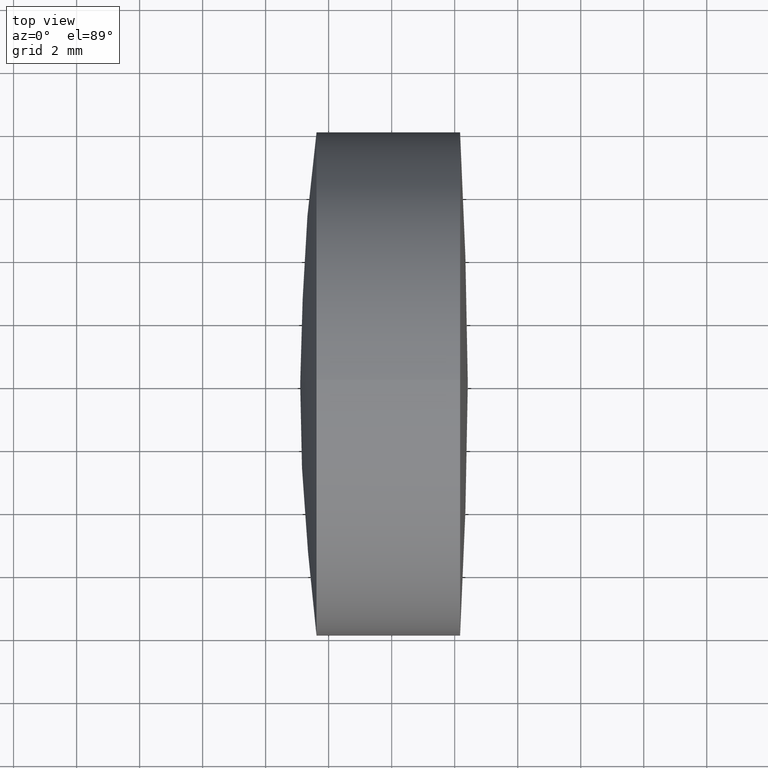
[diagram: clean part render]
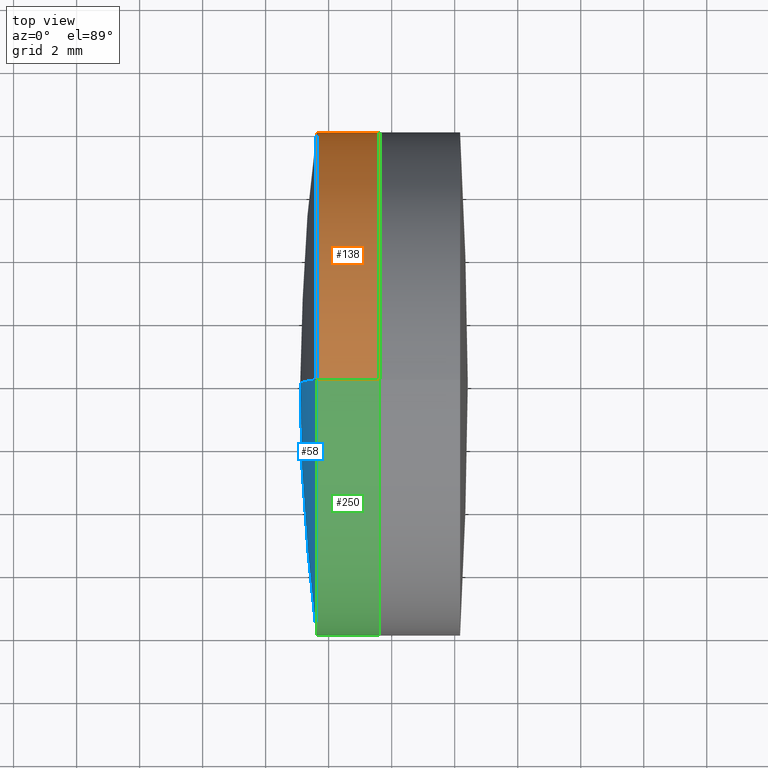
[diagram: same view with three faces highlighted in distinct colors, each labeled with its STEP entity id]
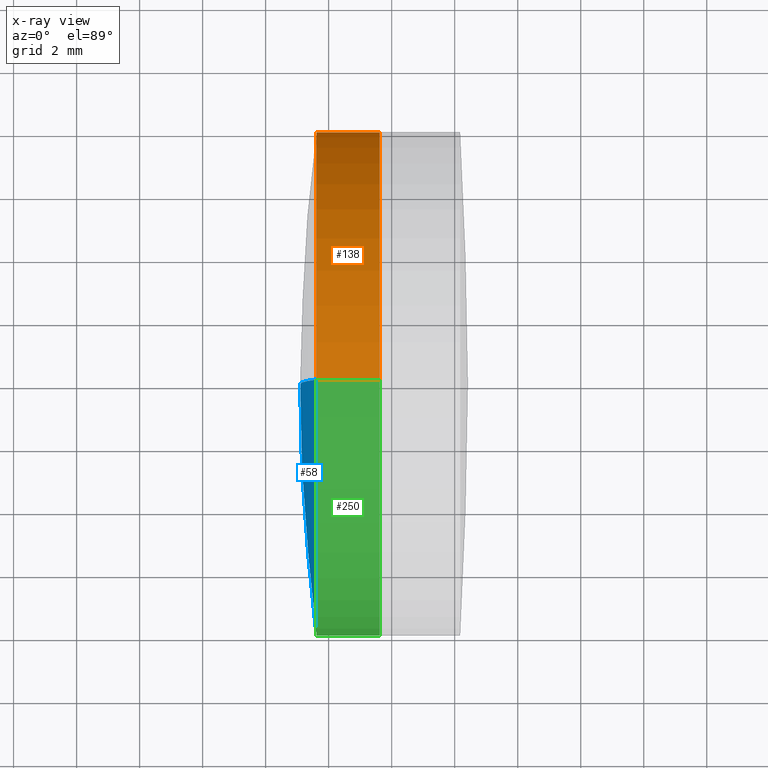
[diagram: x-ray of the same camera — body ghosted, the three highlighted faces saturated]
A machine part, top view with three faces highlighted in distinct colors.
The next image is the same camera in x-ray (body ghosted, the three faces saturated) — at least one of them is partly hidden behind the body in this view.
Their STEP definitions:

[orange] entity #138 — the highlighted cylindrical surface (partial cylindrical patch) has radius 8 mm, axis along (-1, -0, -0).
#1 = CYLINDRICAL_SURFACE ( 'NONE', #87, 8.000000000000000000 ) ;
#3 = ORIENTED_EDGE ( 'NONE', *, *, #163, .T. ) ;
#23 = ORIENTED_EDGE ( 'NONE', *, *, #144, .T. ) ;
#37 = DIRECTION ( 'NONE',  ( 0.0000000000000000000, 0.0000000000000000000, 1.000000000000000000 ) ) ;
#42 = AXIS2_PLACEMENT_3D ( 'NONE', #198, #279, #37 ) ;
#53 = DIRECTION ( 'NONE',  ( 0.0000000000000000000, 0.0000000000000000000, 1.000000000000000000 ) ) ;
#59 = LINE ( 'NONE', #98, #291 ) ;
#75 = CARTESIAN_POINT ( 'NONE',  ( 35.61649277584162100, 0.0000000000000000000, 8.000000000000000000 ) ) ;
#87 = AXIS2_PLACEMENT_3D ( 'NONE', #239, #243, #100 ) ;
#90 = CIRCLE ( 'NONE', #42, 8.000000000000000000 ) ;
#93 = CARTESIAN_POINT ( 'NONE',  ( 33.61495409524220400, -9.797174393178819700E-016, 7.999999999999992900 ) ) ;
#98 = CARTESIAN_POINT ( 'NONE',  ( -9.702612178336682500, 9.797174393178825700E-016, -8.000000000000000000 ) ) ;
#100 = DIRECTION ( 'NONE',  ( 0.0000000000000000000, 0.0000000000000000000, 1.000000000000000000 ) ) ;
#102 = VERTEX_POINT ( 'NONE', #93 ) ;
#126 = AXIS2_PLACEMENT_3D ( 'NONE', #313, #255, #53 ) ;
#133 = LINE ( 'NONE', #253, #189 ) ;
#138 = ADVANCED_FACE ( 'NONE', ( #238 ), #1, .T. ) ;
#139 = EDGE_CURVE ( 'NONE', #102, #223, #90, .T. ) ;
#144 = EDGE_CURVE ( 'NONE', #156, #223, #59, .T. ) ;
#147 = CIRCLE ( 'NONE', #126, 8.000000000000000000 ) ;
#156 = VERTEX_POINT ( 'NONE', #346 ) ;
#163 = EDGE_CURVE ( 'NONE', #332, #156, #147, .T. ) ;
#183 = ORIENTED_EDGE ( 'NONE', *, *, #338, .F. ) ;
#189 = VECTOR ( 'NONE', #273, 1000.000000000000000 ) ;
#198 = CARTESIAN_POINT ( 'NONE',  ( 33.61495409524220400, 0.0000000000000000000, 0.0000000000000000000 ) ) ;
#204 = EDGE_LOOP ( 'NONE', ( #3, #23, #320, #183 ) ) ;
#223 = VERTEX_POINT ( 'NONE', #294 ) ;
#236 = DIRECTION ( 'NONE',  ( -1.000000000000000000, -0.0000000000000000000, -0.0000000000000000000 ) ) ;
#238 = FACE_OUTER_BOUND ( 'NONE', #204, .T. ) ;
#239 = CARTESIAN_POINT ( 'NONE',  ( -9.702612178336682500, 0.0000000000000000000, 0.0000000000000000000 ) ) ;
#243 = DIRECTION ( 'NONE',  ( -1.000000000000000000, -0.0000000000000000000, -0.0000000000000000000 ) ) ;
#253 = CARTESIAN_POINT ( 'NONE',  ( -9.702612178336682500, 0.0000000000000000000, 8.000000000000000000 ) ) ;
#255 = DIRECTION ( 'NONE',  ( -1.000000000000000000, -0.0000000000000000000, -0.0000000000000000000 ) ) ;
#273 = DIRECTION ( 'NONE',  ( -1.000000000000000000, -0.0000000000000000000, -0.0000000000000000000 ) ) ;
#279 = DIRECTION ( 'NONE',  ( -1.000000000000000000, -0.0000000000000000000, -0.0000000000000000000 ) ) ;
#291 = VECTOR ( 'NONE', #236, 1000.000000000000000 ) ;
#294 = CARTESIAN_POINT ( 'NONE',  ( 33.61495409524220400, 0.0000000000000000000, -7.999999999999992900 ) ) ;
#313 = CARTESIAN_POINT ( 'NONE',  ( 35.61649277584162100, 0.0000000000000000000, 0.0000000000000000000 ) ) ;
#320 = ORIENTED_EDGE ( 'NONE', *, *, #139, .F. ) ;
#332 = VERTEX_POINT ( 'NONE', #75 ) ;
#338 = EDGE_CURVE ( 'NONE', #332, #102, #133, .T. ) ;
#346 = CARTESIAN_POINT ( 'NONE',  ( 35.61649277584162100, 9.797174393178825700E-016, -8.000000000000000000 ) ) ;

[blue] entity #58 — the highlighted spherical surface has radius 61.954 mm.
#7 = EDGE_LOOP ( 'NONE', ( #101, #62, #22 ) ) ;
#22 = ORIENTED_EDGE ( 'NONE', *, *, #232, .F. ) ;
#26 = DIRECTION ( 'NONE',  ( 0.0000000000000000000, 1.000000000000000000, -0.0000000000000000000 ) ) ;
#36 = VERTEX_POINT ( 'NONE', #119 ) ;
#40 = EDGE_CURVE ( 'NONE', #102, #36, #345, .T. ) ;
#58 = ADVANCED_FACE ( 'NONE', ( #254 ), #117, .T. ) ;
#62 = ORIENTED_EDGE ( 'NONE', *, *, #40, .T. ) ;
#83 = AXIS2_PLACEMENT_3D ( 'NONE', #209, #185, #142 ) ;
#93 = CARTESIAN_POINT ( 'NONE',  ( 33.61495409524220400, -9.797174393178819700E-016, 7.999999999999992900 ) ) ;
#96 = DIRECTION ( 'NONE',  ( 0.0000000000000000000, 1.224646799147353200E-016, -1.000000000000000000 ) ) ;
#101 = ORIENTED_EDGE ( 'NONE', *, *, #257, .T. ) ;
#102 = VERTEX_POINT ( 'NONE', #93 ) ;
#106 = DIRECTION ( 'NONE',  ( 0.0000000000000000000, 0.0000000000000000000, -1.000000000000000000 ) ) ;
#117 = SPHERICAL_SURFACE ( 'NONE', #169, 61.95399999999999400 ) ;
#119 = CARTESIAN_POINT ( 'NONE',  ( 33.09627061595364900, 0.0000000000000000000, -3.763213766698355200E-015 ) ) ;
#142 = DIRECTION ( 'NONE',  ( 0.0000000000000000000, 0.0000000000000000000, 1.000000000000000000 ) ) ;
#143 = CIRCLE ( 'NONE', #259, 61.95399999999999400 ) ;
#158 = DIRECTION ( 'NONE',  ( 0.0000000000000000000, 0.0000000000000000000, 1.000000000000000000 ) ) ;
#161 = DIRECTION ( 'NONE',  ( -0.0000000000000000000, -1.000000000000000000, -0.0000000000000000000 ) ) ;
#169 = AXIS2_PLACEMENT_3D ( 'NONE', #234, #161, #106 ) ;
#185 = DIRECTION ( 'NONE',  ( -1.000000000000000000, -0.0000000000000000000, -0.0000000000000000000 ) ) ;
#209 = CARTESIAN_POINT ( 'NONE',  ( 33.61495409524220400, 0.0000000000000000000, 0.0000000000000000000 ) ) ;
#210 = CARTESIAN_POINT ( 'NONE',  ( 95.05027061595363600, 0.0000000000000000000, 3.037462302040094600E-017 ) ) ;
#213 = CARTESIAN_POINT ( 'NONE',  ( 95.05027061595363600, 0.0000000000000000000, 3.037462302040094600E-017 ) ) ;
#218 = AXIS2_PLACEMENT_3D ( 'NONE', #213, #298, #96 ) ;
#223 = VERTEX_POINT ( 'NONE', #294 ) ;
#232 = EDGE_CURVE ( 'NONE', #223, #36, #143, .T. ) ;
#234 = CARTESIAN_POINT ( 'NONE',  ( 95.05027061595363600, 0.0000000000000000000, 3.037462302040094600E-017 ) ) ;
#254 = FACE_OUTER_BOUND ( 'NONE', #7, .T. ) ;
#257 = EDGE_CURVE ( 'NONE', #223, #102, #267, .T. ) ;
#259 = AXIS2_PLACEMENT_3D ( 'NONE', #210, #26, #158 ) ;
#267 = CIRCLE ( 'NONE', #83, 8.000000000000000000 ) ;
#294 = CARTESIAN_POINT ( 'NONE',  ( 33.61495409524220400, 0.0000000000000000000, -7.999999999999992900 ) ) ;
#298 = DIRECTION ( 'NONE',  ( 0.0000000000000000000, -1.000000000000000000, -1.224646799147353200E-016 ) ) ;
#345 = CIRCLE ( 'NONE', #218, 61.95399999999999400 ) ;

[green] entity #250 — the highlighted cylindrical surface (partial cylindrical patch) has radius 8 mm, axis along (-1, -0, -0).
#15 = ORIENTED_EDGE ( 'NONE', *, *, #338, .T. ) ;
#29 = EDGE_CURVE ( 'NONE', #156, #332, #258, .T. ) ;
#46 = DIRECTION ( 'NONE',  ( 0.0000000000000000000, 0.0000000000000000000, 1.000000000000000000 ) ) ;
#51 = EDGE_LOOP ( 'NONE', ( #184, #277, #15, #150 ) ) ;
#59 = LINE ( 'NONE', #98, #291 ) ;
#72 = CARTESIAN_POINT ( 'NONE',  ( -9.702612178336682500, 0.0000000000000000000, 0.0000000000000000000 ) ) ;
#75 = CARTESIAN_POINT ( 'NONE',  ( 35.61649277584162100, 0.0000000000000000000, 8.000000000000000000 ) ) ;
#83 = AXIS2_PLACEMENT_3D ( 'NONE', #209, #185, #142 ) ;
#93 = CARTESIAN_POINT ( 'NONE',  ( 33.61495409524220400, -9.797174393178819700E-016, 7.999999999999992900 ) ) ;
#98 = CARTESIAN_POINT ( 'NONE',  ( -9.702612178336682500, 9.797174393178825700E-016, -8.000000000000000000 ) ) ;
#102 = VERTEX_POINT ( 'NONE', #93 ) ;
#122 = CARTESIAN_POINT ( 'NONE',  ( 35.61649277584162100, 0.0000000000000000000, 0.0000000000000000000 ) ) ;
#133 = LINE ( 'NONE', #253, #189 ) ;
#142 = DIRECTION ( 'NONE',  ( 0.0000000000000000000, 0.0000000000000000000, 1.000000000000000000 ) ) ;
#144 = EDGE_CURVE ( 'NONE', #156, #223, #59, .T. ) ;
#150 = ORIENTED_EDGE ( 'NONE', *, *, #257, .F. ) ;
#156 = VERTEX_POINT ( 'NONE', #346 ) ;
#184 = ORIENTED_EDGE ( 'NONE', *, *, #144, .F. ) ;
#185 = DIRECTION ( 'NONE',  ( -1.000000000000000000, -0.0000000000000000000, -0.0000000000000000000 ) ) ;
#189 = VECTOR ( 'NONE', #273, 1000.000000000000000 ) ;
#190 = CYLINDRICAL_SURFACE ( 'NONE', #192, 8.000000000000000000 ) ;
#192 = AXIS2_PLACEMENT_3D ( 'NONE', #72, #274, #305 ) ;
#209 = CARTESIAN_POINT ( 'NONE',  ( 33.61495409524220400, 0.0000000000000000000, 0.0000000000000000000 ) ) ;
#223 = VERTEX_POINT ( 'NONE', #294 ) ;
#236 = DIRECTION ( 'NONE',  ( -1.000000000000000000, -0.0000000000000000000, -0.0000000000000000000 ) ) ;
#250 = ADVANCED_FACE ( 'NONE', ( #319 ), #190, .T. ) ;
#253 = CARTESIAN_POINT ( 'NONE',  ( -9.702612178336682500, 0.0000000000000000000, 8.000000000000000000 ) ) ;
#257 = EDGE_CURVE ( 'NONE', #223, #102, #267, .T. ) ;
#258 = CIRCLE ( 'NONE', #300, 8.000000000000000000 ) ;
#267 = CIRCLE ( 'NONE', #83, 8.000000000000000000 ) ;
#273 = DIRECTION ( 'NONE',  ( -1.000000000000000000, -0.0000000000000000000, -0.0000000000000000000 ) ) ;
#274 = DIRECTION ( 'NONE',  ( -1.000000000000000000, -0.0000000000000000000, -0.0000000000000000000 ) ) ;
#277 = ORIENTED_EDGE ( 'NONE', *, *, #29, .T. ) ;
#291 = VECTOR ( 'NONE', #236, 1000.000000000000000 ) ;
#294 = CARTESIAN_POINT ( 'NONE',  ( 33.61495409524220400, 0.0000000000000000000, -7.999999999999992900 ) ) ;
#297 = DIRECTION ( 'NONE',  ( -1.000000000000000000, -0.0000000000000000000, -0.0000000000000000000 ) ) ;
#300 = AXIS2_PLACEMENT_3D ( 'NONE', #122, #297, #46 ) ;
#305 = DIRECTION ( 'NONE',  ( 0.0000000000000000000, 0.0000000000000000000, 1.000000000000000000 ) ) ;
#319 = FACE_OUTER_BOUND ( 'NONE', #51, .T. ) ;
#332 = VERTEX_POINT ( 'NONE', #75 ) ;
#338 = EDGE_CURVE ( 'NONE', #332, #102, #133, .T. ) ;
#346 = CARTESIAN_POINT ( 'NONE',  ( 35.61649277584162100, 9.797174393178825700E-016, -8.000000000000000000 ) ) ;